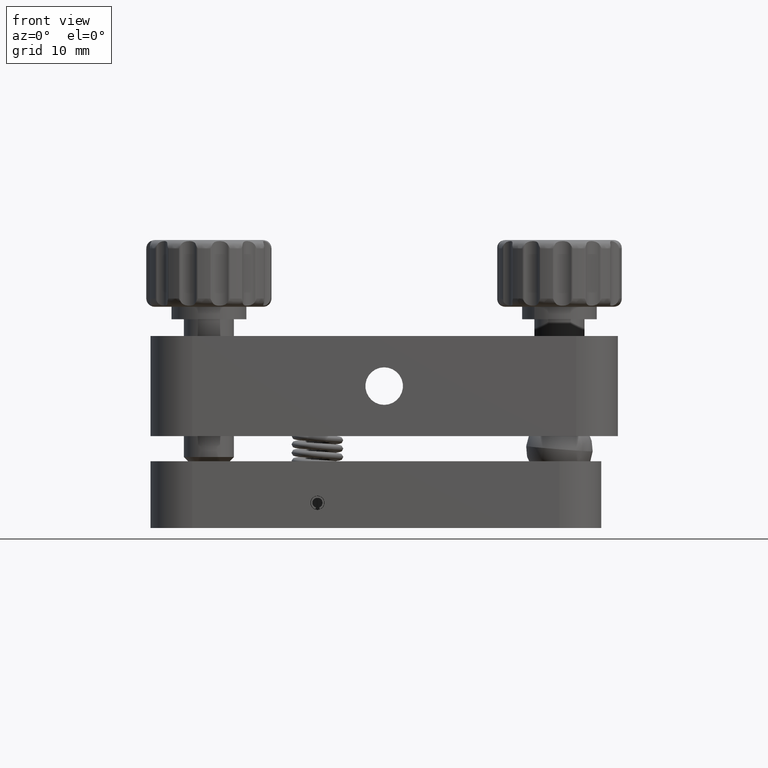
[diagram: clean part render]
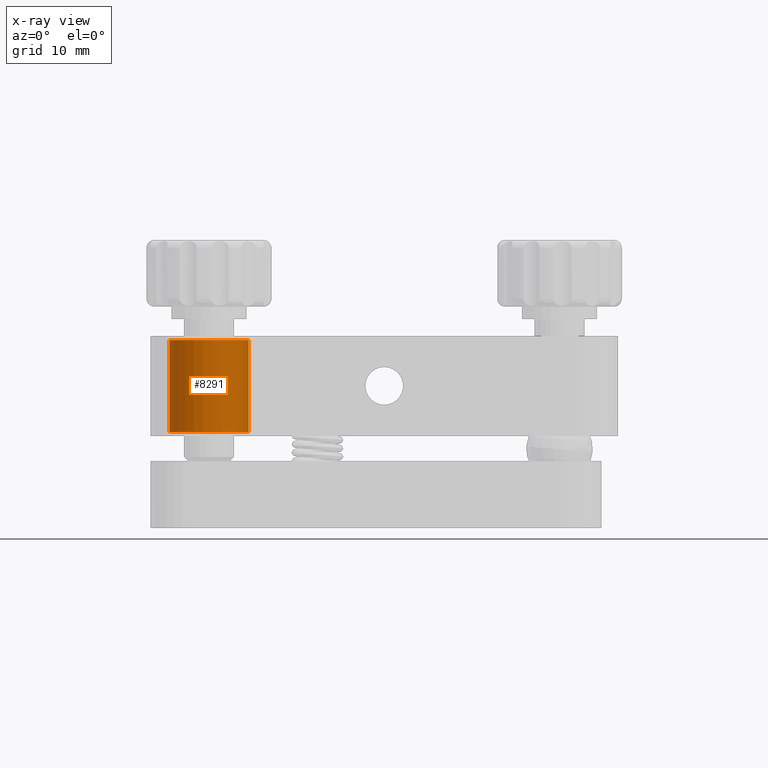
[diagram: x-ray — body ghosted, one internal face saturated and labeled with its STEP entity id]
A machine part, front view, then the same camera in x-ray: the body is ghosted and one INTERNAL B-rep face — a face not visible from any outside direction — is saturated and labeled: STEP entity #8291.
In plain terms, the highlighted cylindrical surface (partial cylindrical patch) has radius 4.75 mm, axis along (-0, 0, 1).
Its self-contained STEP definition (entity closure, byte-faithful):
#200 = CYLINDRICAL_SURFACE ( 'NONE', #1839, 4.749999999999983100 ) ;
#478 = DIRECTION ( 'NONE',  ( 0.9995860943981548200, -0.02876873104332385400, 0.0000000000000000000 ) ) ;
#518 = ORIENTED_EDGE ( 'NONE', *, *, #7171, .F. ) ;
#564 = ORIENTED_EDGE ( 'NONE', *, *, #1145, .T. ) ;
#898 = CARTESIAN_POINT ( 'NONE',  ( -25.74803394839122800, -20.86334852754421500, -6.000000000000000000 ) ) ;
#1145 = EDGE_CURVE ( 'NONE', #16693, #14403, #16864, .T. ) ;
#1318 = CARTESIAN_POINT ( 'NONE',  ( -16.25196605160879000, -21.13665147245578900, -6.000000000000000000 ) ) ;
#1460 = DIRECTION ( 'NONE',  ( -1.877740222923907400E-031, 1.186169031379936100E-031, 1.000000000000000000 ) ) ;
#1839 = AXIS2_PLACEMENT_3D ( 'NONE', #6604, #17639, #478 ) ;
#1918 = CARTESIAN_POINT ( 'NONE',  ( -16.25196605160877500, -21.13665147245578900, -5.499999999999997300 ) ) ;
#2095 = CARTESIAN_POINT ( 'NONE',  ( -25.74803394839123900, -20.86334852754421500, -5.499999999999997300 ) ) ;
#2311 = DIRECTION ( 'NONE',  ( 1.877740222923907400E-031, -1.186169031379936100E-031, -1.000000000000000000 ) ) ;
#4022 = CARTESIAN_POINT ( 'NONE',  ( -21.00000000000000700, -21.00000000000000000, 5.500000000000000000 ) ) ;
#4564 = DIRECTION ( 'NONE',  ( -0.9995860943981548200, 0.02876873104332385400, 0.0000000000000000000 ) ) ;
#4623 = FACE_OUTER_BOUND ( 'NONE', #6160, .T. ) ;
#6160 = EDGE_LOOP ( 'NONE', ( #518, #8172, #564, #9722 ) ) ;
#6180 = VERTEX_POINT ( 'NONE', #15473 ) ;
#6593 = AXIS2_PLACEMENT_3D ( 'NONE', #10715, #1460, #4564 ) ;
#6604 = CARTESIAN_POINT ( 'NONE',  ( -21.00000000000000700, -21.00000000000000000, -6.000000000000000000 ) ) ;
#7171 = EDGE_CURVE ( 'NONE', #16837, #6180, #16779, .T. ) ;
#8172 = ORIENTED_EDGE ( 'NONE', *, *, #13511, .T. ) ;
#8291 = ADVANCED_FACE ( 'NONE', ( #4623 ), #200, .T. ) ;
#9722 = ORIENTED_EDGE ( 'NONE', *, *, #13852, .T. ) ;
#10715 = CARTESIAN_POINT ( 'NONE',  ( -21.00000000000000700, -21.00000000000000000, -5.499999999999997300 ) ) ;
#11408 = VECTOR ( 'NONE', #13935, 1000.000000000000000 ) ;
#11924 = DIRECTION ( 'NONE',  ( -1.877740222923907400E-031, 1.186169031379936100E-031, 1.000000000000000000 ) ) ;
#11989 = CARTESIAN_POINT ( 'NONE',  ( -16.25196605160877500, -21.13665147245578900, 5.500000000000000000 ) ) ;
#12612 = CIRCLE ( 'NONE', #6593, 4.749999999999983100 ) ;
#13511 = EDGE_CURVE ( 'NONE', #16837, #16693, #12612, .T. ) ;
#13852 = EDGE_CURVE ( 'NONE', #14403, #6180, #17524, .T. ) ;
#13935 = DIRECTION ( 'NONE',  ( -1.877740222923907400E-031, 1.186169031379936100E-031, 1.000000000000000000 ) ) ;
#14403 = VERTEX_POINT ( 'NONE', #11989 ) ;
#14787 = VECTOR ( 'NONE', #11924, 1000.000000000000000 ) ;
#15473 = CARTESIAN_POINT ( 'NONE',  ( -25.74803394839123900, -20.86334852754421500, 5.500000000000000000 ) ) ;
#16126 = AXIS2_PLACEMENT_3D ( 'NONE', #4022, #2311, #16645 ) ;
#16645 = DIRECTION ( 'NONE',  ( -0.9995860943981548200, 0.02876873104332385400, 0.0000000000000000000 ) ) ;
#16693 = VERTEX_POINT ( 'NONE', #1918 ) ;
#16779 = LINE ( 'NONE', #898, #14787 ) ;
#16837 = VERTEX_POINT ( 'NONE', #2095 ) ;
#16864 = LINE ( 'NONE', #1318, #11408 ) ;
#17524 = CIRCLE ( 'NONE', #16126, 4.749999999999983100 ) ;
#17639 = DIRECTION ( 'NONE',  ( -1.877740222923907400E-031, 1.186169031379936100E-031, 1.000000000000000000 ) ) ;